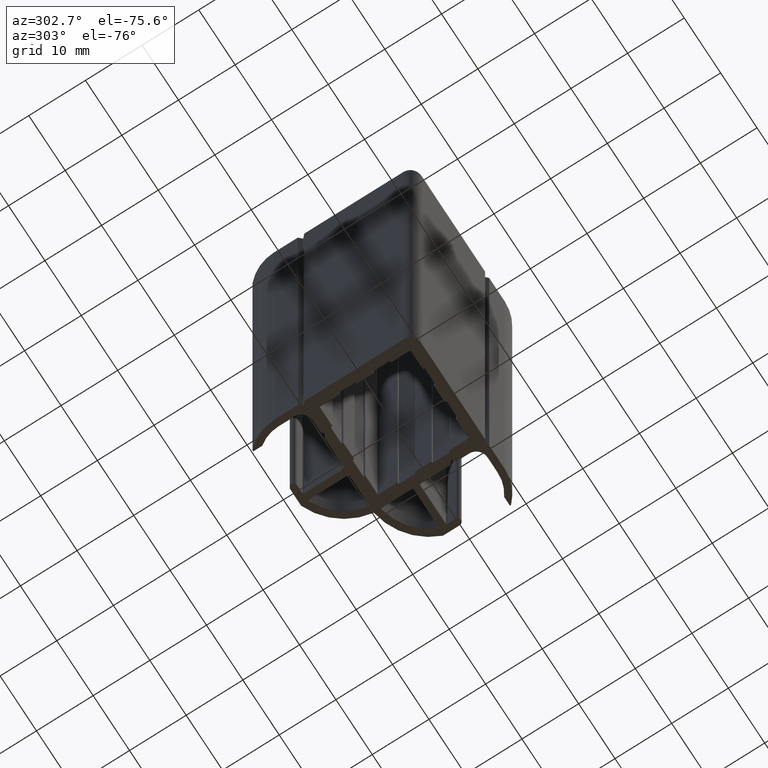
[diagram: clean part render]
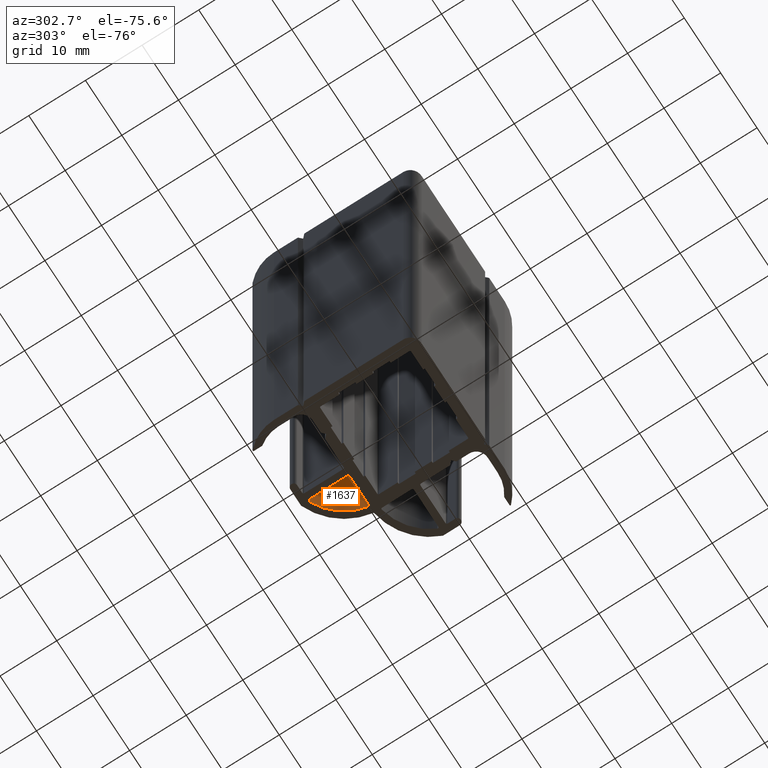
[diagram: same view with one face highlighted and labeled with its STEP entity id]
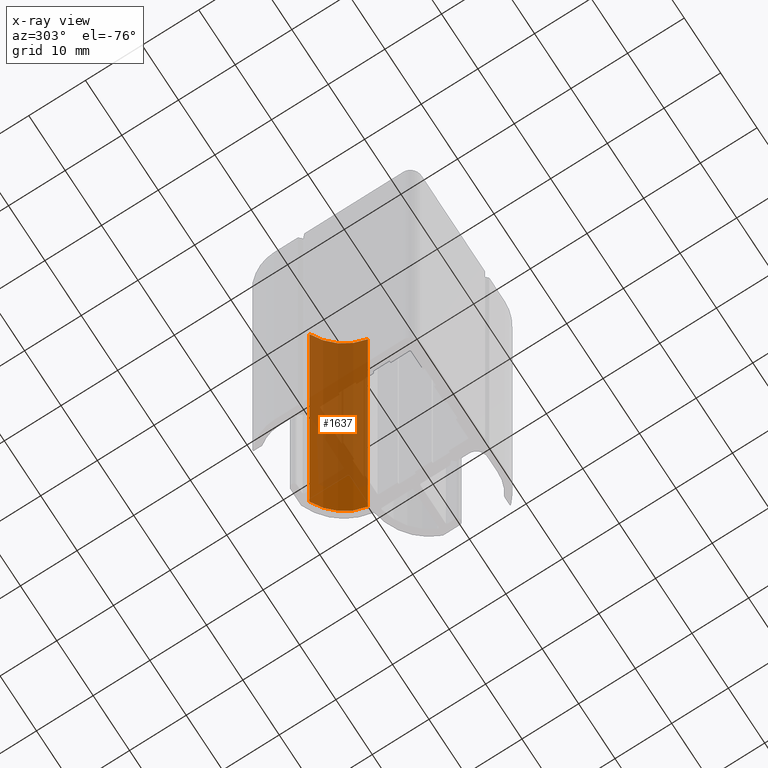
[diagram: x-ray of the same camera — body ghosted, the highlighted face saturated]
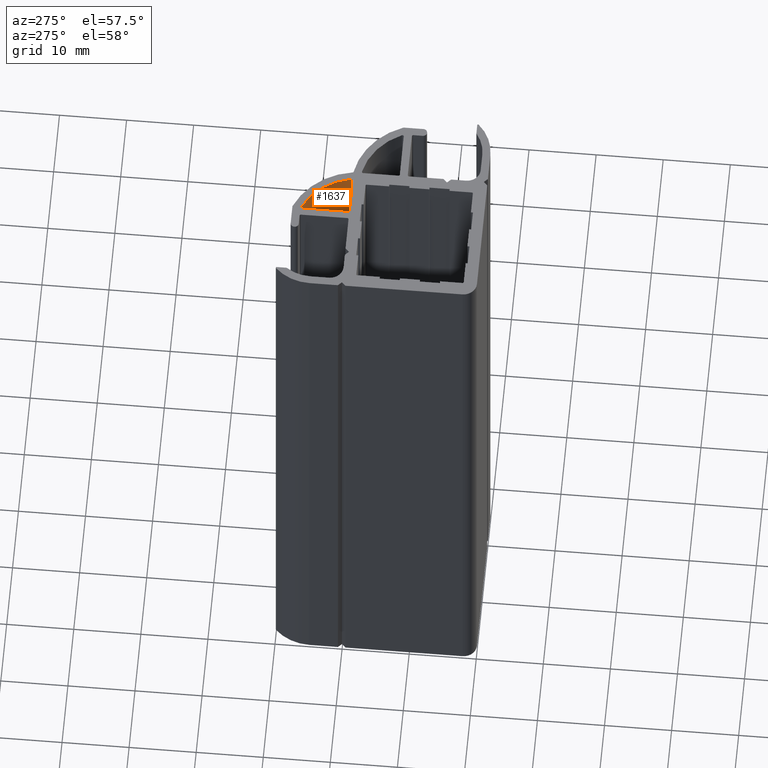
[diagram: same view with one face highlighted and labeled with its STEP entity id]
A machine part, auxiliary view. The second image highlights one B-rep face of the part: STEP entity #1637.
The next image is the same camera in x-ray: the body ghosted, the highlighted face saturated — about 80% of this face is hidden behind the body in this view.
A second angle (auxiliary view) of the same face is appended — the face is thin or edge-on in the first view.
In plain terms, the highlighted cylindrical surface (partial cylindrical patch) has radius 9.8 mm, axis along (0, 0, -1).
Its self-contained STEP definition (entity closure, byte-faithful):
#1596=CARTESIAN_POINT('',(-1.586228910450927,18.309379536533925,0.0));
#1597=DIRECTION('',(0.0,0.0,-1.0));
#1598=DIRECTION('',(0.434532373600402,0.900656214264466,0.0));
#1599=AXIS2_PLACEMENT_3D('',#1596,#1597,#1598);
#1600=CYLINDRICAL_SURFACE('',#1599,9.800000000000001);
#1601=CARTESIAN_POINT('',(2.672188350833039,27.135810436325642,0.0));
#1602=VERTEX_POINT('',#1601);
#1603=CARTESIAN_POINT('',(8.021844133367267,20.239387926322593,0.0));
#1604=VERTEX_POINT('',#1603);
#1605=CARTESIAN_POINT('',(-1.586228910450927,18.309379536533925,0.0));
#1606=DIRECTION('',(0.0,0.0,-1.0));
#1607=DIRECTION('',(1.0,0.0,0.0));
#1608=AXIS2_PLACEMENT_3D('',#1605,#1606,#1607);
#1609=CIRCLE('',#1608,9.800000000000001);
#1610=EDGE_CURVE('',#1602,#1604,#1609,.T.);
#1611=ORIENTED_EDGE('',*,*,#1610,.T.);
#1612=CARTESIAN_POINT('',(8.021844133367267,20.239387926322593,100.0));
#1613=VERTEX_POINT('',#1612);
#1614=CARTESIAN_POINT('',(8.021844133367267,20.239387926322593,0.0));
#1615=DIRECTION('',(0.0,0.0,1.0));
#1616=VECTOR('',#1615,100.0);
#1617=LINE('',#1614,#1616);
#1618=EDGE_CURVE('',#1604,#1613,#1617,.T.);
#1619=ORIENTED_EDGE('',*,*,#1618,.T.);
#1620=CARTESIAN_POINT('',(2.672188350833039,27.135810436325642,100.0));
#1621=VERTEX_POINT('',#1620);
#1622=CARTESIAN_POINT('',(-1.586228910450927,18.309379536533925,100.0));
#1623=DIRECTION('',(0.0,0.0,-1.0));
#1624=DIRECTION('',(1.0,0.0,0.0));
#1625=AXIS2_PLACEMENT_3D('',#1622,#1623,#1624);
#1626=CIRCLE('',#1625,9.800000000000001);
#1627=EDGE_CURVE('',#1621,#1613,#1626,.T.);
#1628=ORIENTED_EDGE('',*,*,#1627,.F.);
#1629=CARTESIAN_POINT('',(2.672188350833039,27.135810436325642,0.0));
#1630=DIRECTION('',(0.0,0.0,1.0));
#1631=VECTOR('',#1630,100.0);
#1632=LINE('',#1629,#1631);
#1633=EDGE_CURVE('',#1602,#1621,#1632,.T.);
#1634=ORIENTED_EDGE('',*,*,#1633,.F.);
#1635=EDGE_LOOP('',(#1611,#1619,#1628,#1634));
#1636=FACE_OUTER_BOUND('',#1635,.T.);
#1637=ADVANCED_FACE('',(#1636),#1600,.F.);